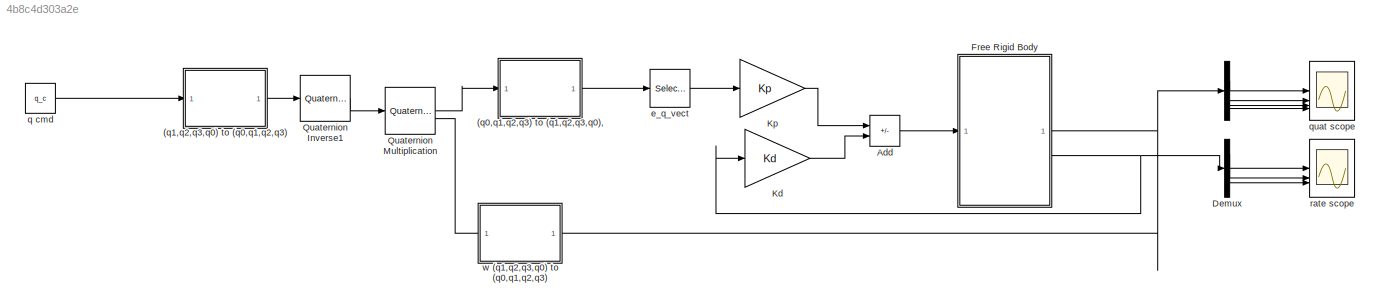
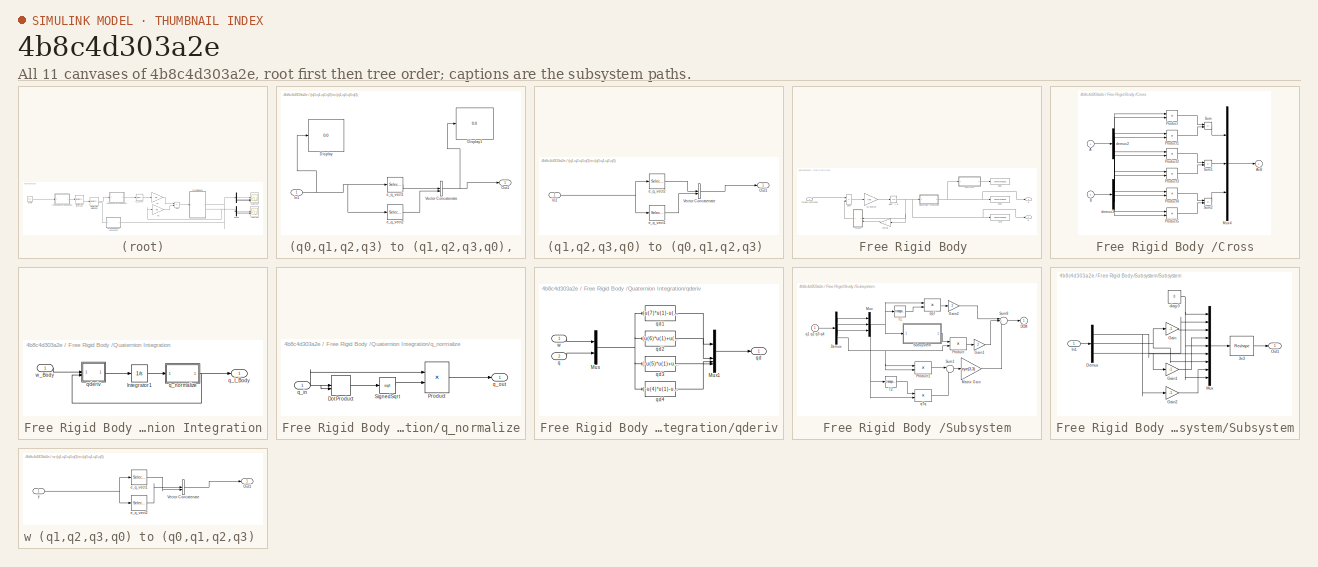
[diagram: thumbnail index - all 11 canvases of the model, root first then tree order]
MODEL slx_4b8c4d303a2e
KIND model
CONFIG AbsTol = auto
CONFIG EnableMultiTasking = on
CONFIG FixedStep = auto
CONFIG MaxStep = 20
CONFIG MinStep = auto
CONFIG RelTol = 1e-6
CONFIG SampleTimeConstraint = Unconstrained
CONFIG SolverName = ode45
CONFIG StartTime = 0.0
CONFIG StopTime = 2000
BLOCK [Demux]  
  DisplayOption = none
BLOCK [SubSystem] (q0,q1,q2,q3) to (q1,q2,q3,q0),
BLOCK [Display] (q0,q1,q2,q3) to (q1,q2,q3,q0),/Display
  Decimation = 1
BLOCK [Display] (q0,q1,q2,q3) to (q1,q2,q3,q0),/Display1
  Decimation = 1
BLOCK [Inport] (q0,q1,q2,q3) to (q1,q2,q3,q0),/In1
BLOCK [Outport] (q0,q1,q2,q3) to (q1,q2,q3,q0),/Out1
BLOCK [Concatenate] (q0,q1,q2,q3) to (q1,q2,q3,q0),/Vector Concatenate
BLOCK [Selector] (q0,q1,q2,q3) to (q1,q2,q3,q0),/e_q_vect1
  IndexOptions = Index vector (dialog)
  Indices = [2 3 4]
  InputPortWidth = 4
  OutputSizes = 1
BLOCK [Selector] (q0,q1,q2,q3) to (q1,q2,q3,q0),/e_q_vect2
  IndexOptions = Index vector (dialog)
  Indices = [1]
  InputPortWidth = 4
  OutputSizes = 1
BLOCK [SubSystem] (q1,q2,q3,q0) to (q0,q1,q2,q3) 
BLOCK [Inport] (q1,q2,q3,q0) to (q0,q1,q2,q3) /In1
BLOCK [Outport] (q1,q2,q3,q0) to (q0,q1,q2,q3) /Out1
BLOCK [Concatenate] (q1,q2,q3,q0) to (q0,q1,q2,q3) /Vector Concatenate
BLOCK [Selector] (q1,q2,q3,q0) to (q0,q1,q2,q3) /e_q_vect1
  IndexOptions = Index vector (dialog)
  Indices = [1 2 3]
  InputPortWidth = 4
  OutputSizes = 1
BLOCK [Selector] (q1,q2,q3,q0) to (q0,q1,q2,q3) /e_q_vect2
  IndexOptions = Index vector (dialog)
  Indices = [4]
  InputPortWidth = 4
  OutputSizes = 1
BLOCK [Sum] Add
  IconShape = rectangular
  Inputs = --
BLOCK [Demux] Demux
  DisplayOption = none
  Outputs = 3
BLOCK [SubSystem] Free Rigid Body 
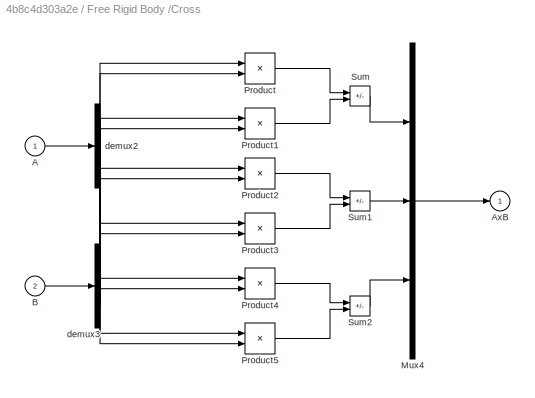
BLOCK [SubSystem] Free Rigid Body /Cross
BLOCK [Inport] Free Rigid Body /Cross/A
BLOCK [Outport] Free Rigid Body /Cross/AxB
  InitialOutput = 0
BLOCK [Inport] Free Rigid Body /Cross/B
  Port = 2
BLOCK [Mux] Free Rigid Body /Cross/Mux4
  Inputs = 3
BLOCK [Product] Free Rigid Body /Cross/Product
  InputSameDT = on
  OutDataTypeStr = Inherit: Same as first input
  SaturateOnIntegerOverflow = on
BLOCK [Product] Free Rigid Body /Cross/Product1
  InputSameDT = on
  OutDataTypeStr = Inherit: Same as first input
  SaturateOnIntegerOverflow = on
BLOCK [Product] Free Rigid Body /Cross/Product2
  InputSameDT = on
  OutDataTypeStr = Inherit: Same as first input
  SaturateOnIntegerOverflow = on
BLOCK [Product] Free Rigid Body /Cross/Product3
  InputSameDT = on
  OutDataTypeStr = Inherit: Same as first input
  SaturateOnIntegerOverflow = on
BLOCK [Product] Free Rigid Body /Cross/Product4
  InputSameDT = on
  OutDataTypeStr = Inherit: Same as first input
  SaturateOnIntegerOverflow = on
BLOCK [Product] Free Rigid Body /Cross/Product5
  InputSameDT = on
  OutDataTypeStr = Inherit: Same as first input
  SaturateOnIntegerOverflow = on
BLOCK [Sum] Free Rigid Body /Cross/Sum
  IconShape = rectangular
  InputSameDT = on
  Inputs = +-
  OutDataTypeStr = Inherit: Same as first input
  SaturateOnIntegerOverflow = on
BLOCK [Sum] Free Rigid Body /Cross/Sum1
  IconShape = rectangular
  InputSameDT = on
  Inputs = +-
  OutDataTypeStr = Inherit: Same as first input
  SaturateOnIntegerOverflow = on
BLOCK [Sum] Free Rigid Body /Cross/Sum2
  IconShape = rectangular
  InputSameDT = on
  Inputs = +-
  OutDataTypeStr = Inherit: Same as first input
  SaturateOnIntegerOverflow = on
BLOCK [Demux] Free Rigid Body /Cross/demux2
  DisplayOption = none
  Outputs = 3
BLOCK [Demux] Free Rigid Body /Cross/demux3
  DisplayOption = none
  Outputs = 3
BLOCK [ToWorkspace] Free Rigid Body /DCM
  FixptAsFi = on
  MaxDataPoints = inf
  SampleTime = -1
  SaveFormat = Structure With Time
  VariableName = DCM
BLOCK [Gain] Free Rigid Body /Inertia
  Gain = I
  Multiplication = Matrix(K*u)
  OutDataTypeStr = Inherit: Same as input
  ParamDataTypeStr = Inherit: Same as input
  SaturateOnIntegerOverflow = on
BLOCK [Gain] Free Rigid Body /Isc inverse
  Gain = invI
  Multiplication = Matrix(K*u)
  OutDataTypeStr = Inherit: Same as input
  ParamDataTypeStr = Inherit: Same as input
  SaturateOnIntegerOverflow = on
BLOCK [SubSystem] Free Rigid Body /Quaternion Integration
BLOCK [Integrator] Free Rigid Body /Quaternion Integration/Integrator1
  InitialCondition = q_init
BLOCK [Outport] Free Rigid Body /Quaternion Integration/q_I_Body
BLOCK [SubSystem] Free Rigid Body /Quaternion Integration/q_normalize
BLOCK [DotProduct] Free Rigid Body /Quaternion Integration/q_normalize/Dot Product
  OutDataTypeStr = Inherit: Inherit via internal rule
BLOCK [Product] Free Rigid Body /Quaternion Integration/q_normalize/Product
  InputSameDT = on
  Inputs = */
  OutDataTypeStr = Inherit: Same as first input
  SaturateOnIntegerOverflow = on
BLOCK [Sqrt] Free Rigid Body /Quaternion Integration/q_normalize/SignedSqrt
  IntermediateResultsDataTypeStr = double
BLOCK [Inport] Free Rigid Body /Quaternion Integration/q_normalize/q_in
  PortDimensions = 4
BLOCK [Outport] Free Rigid Body /Quaternion Integration/q_normalize/q_out
BLOCK [SubSystem] Free Rigid Body /Quaternion Integration/qderiv
BLOCK [Mux] Free Rigid Body /Quaternion Integration/qderiv/Mux
  DisplayOption = bar
  Inputs = 2
BLOCK [Mux] Free Rigid Body /Quaternion Integration/qderiv/Mux1
  DisplayOption = bar
BLOCK [Inport] Free Rigid Body /Quaternion Integration/qderiv/q
  Port = 2
BLOCK [Outport] Free Rigid Body /Quaternion Integration/qderiv/qd
BLOCK [Fcn] Free Rigid Body /Quaternion Integration/qderiv/qd1
  Expr = (u(7)*u(1)-u(6)*u(2)+u(5)*u(3))/2
BLOCK [Fcn] Free Rigid Body /Quaternion Integration/qderiv/qd2
  Expr = (u(6)*u(1)+u(7)*u(2)-u(4)*u(3))/2
BLOCK [Fcn] Free Rigid Body /Quaternion Integration/qderiv/qd3
  Expr = (-u(5)*u(1)+u(4)*u(2)+u(7)*u(3))/2
BLOCK [Fcn] Free Rigid Body /Quaternion Integration/qderiv/qd4
  Expr = (-u(4)*u(1)-u(5)*u(2)-u(6)*u(3))/2
BLOCK [Inport] Free Rigid Body /Quaternion Integration/qderiv/w
BLOCK [Inport] Free Rigid Body /Quaternion Integration/w_Body
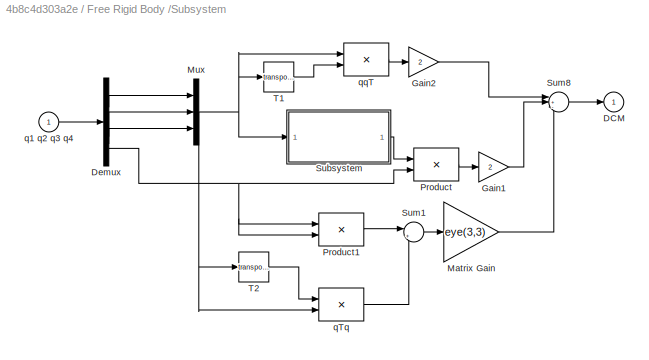
BLOCK [SubSystem] Free Rigid Body /Subsystem
BLOCK [Outport] Free Rigid Body /Subsystem/DCM
  InitialOutput = 0
BLOCK [Demux] Free Rigid Body /Subsystem/Demux
  DisplayOption = none
BLOCK [Gain] Free Rigid Body /Subsystem/Gain1
  Gain = 2
  OutDataTypeStr = Inherit: Same as input
  ParamDataTypeStr = Inherit: Same as input
  SaturateOnIntegerOverflow = on
BLOCK [Gain] Free Rigid Body /Subsystem/Gain2
  Gain = 2
  OutDataTypeStr = Inherit: Same as input
  ParamDataTypeStr = Inherit: Same as input
  SaturateOnIntegerOverflow = on
BLOCK [Gain] Free Rigid Body /Subsystem/Matrix Gain
  Gain = eye(3,3)
  OutDataTypeStr = Inherit: Same as input
  ParamDataTypeStr = Inherit: Same as input
  SaturateOnIntegerOverflow = on
BLOCK [Mux] Free Rigid Body /Subsystem/Mux
  DisplayOption = bar
  Inputs = 3
BLOCK [Product] Free Rigid Body /Subsystem/Product
  InputSameDT = on
  OutDataTypeStr = Inherit: Same as first input
  SaturateOnIntegerOverflow = on
BLOCK [Product] Free Rigid Body /Subsystem/Product1
  InputSameDT = on
  OutDataTypeStr = Inherit: Same as first input
  SaturateOnIntegerOverflow = on
BLOCK [SubSystem] Free Rigid Body /Subsystem/Subsystem
BLOCK [Reshape] Free Rigid Body /Subsystem/Subsystem/3x3
  OutputDimensionality = Customize
  OutputDimensions = [3,3]
BLOCK [Demux] Free Rigid Body /Subsystem/Subsystem/Demux
  DisplayOption = none
  Outputs = 3
BLOCK [Gain] Free Rigid Body /Subsystem/Subsystem/Gain
  Gain = -1
  OutDataTypeStr = Inherit: Same as input
  ParamDataTypeStr = Inherit: Same as input
  SaturateOnIntegerOverflow = on
BLOCK [Gain] Free Rigid Body /Subsystem/Subsystem/Gain1
  Gain = -1
  OutDataTypeStr = Inherit: Same as input
  ParamDataTypeStr = Inherit: Same as input
  SaturateOnIntegerOverflow = on
BLOCK [Gain] Free Rigid Body /Subsystem/Subsystem/Gain2
  Gain = -1
  OutDataTypeStr = Inherit: Same as input
  ParamDataTypeStr = Inherit: Same as input
  SaturateOnIntegerOverflow = on
BLOCK [Inport] Free Rigid Body /Subsystem/Subsystem/In1
BLOCK [Mux] Free Rigid Body /Subsystem/Subsystem/Mux
  DisplayOption = bar
  Inputs = 9
BLOCK [Outport] Free Rigid Body /Subsystem/Subsystem/Out1
BLOCK [Constant] Free Rigid Body /Subsystem/Subsystem/diag 0 
  Value = 0
BLOCK [Sum] Free Rigid Body /Subsystem/Sum1
  InputSameDT = on
  Inputs = |+-
  OutDataTypeStr = Inherit: Same as first input
  SaturateOnIntegerOverflow = on
BLOCK [Sum] Free Rigid Body /Subsystem/Sum8
  InputSameDT = on
  Inputs = |+-+
  OutDataTypeStr = Inherit: Same as first input
  SaturateOnIntegerOverflow = on
BLOCK [Math] Free Rigid Body /Subsystem/T1
  Operator = transpose
  SignedPower = on
BLOCK [Math] Free Rigid Body /Subsystem/T2
  Operator = transpose
  SignedPower = on
BLOCK [Inport] Free Rigid Body /Subsystem/q1 q2 q3 q4
BLOCK [Product] Free Rigid Body /Subsystem/qTq
  InputSameDT = on
  Multiplication = Matrix(*)
  OutDataTypeStr = Inherit: Same as first input
  SaturateOnIntegerOverflow = on
BLOCK [Product] Free Rigid Body /Subsystem/qqT
  InputSameDT = on
  Multiplication = Matrix(*)
  OutDataTypeStr = Inherit: Same as first input
  SaturateOnIntegerOverflow = on
BLOCK [Sum] Free Rigid Body /Sum
  IconShape = rectangular
  InputSameDT = on
  Inputs = |+-
  OutDataTypeStr = Inherit: Same as first input
  SaturateOnIntegerOverflow = on
BLOCK [Outport] Free Rigid Body /q
BLOCK [ToWorkspace] Free Rigid Body /quat
  FixptAsFi = on
  MaxDataPoints = inf
  SampleTime = -1
  SaveFormat = Structure With Time
  VariableName = quat
BLOCK [ToWorkspace] Free Rigid Body /rate
  FixptAsFi = on
  MaxDataPoints = inf
  SampleTime = -1
  SaveFormat = Structure With Time
  VariableName = rate
BLOCK [Inport] Free Rigid Body /torque command
BLOCK [Outport] Free Rigid Body /w
  Port = 2
BLOCK [Integrator] Free Rigid Body /wdot -> w
  InitialCondition = wbn_init
BLOCK [Gain] Kd
  Gain = Kd
  Multiplication = Matrix(K*u)
  OutDataTypeStr = Inherit: Same as input
  ParamDataTypeStr = Inherit: Same as input
  SaturateOnIntegerOverflow = on
BLOCK [Gain] Kp
  Gain = Kp
  Multiplication = Matrix(K*u)
  OutDataTypeStr = Inherit: Same as input
  ParamDataTypeStr = Inherit: Same as input
  SaturateOnIntegerOverflow = on
BLOCK [Reference] Quaternion Inverse1  REF=aerolibutil/Quaternion
Inverse
  SourceBlock = aerolibutil/Quaternion\nInverse
  SourceType = Quaternion Inverse
BLOCK [Reference] Quaternion Multiplication  REF=aerolibutil/Quaternion
Multiplication
  SourceBlock = aerolibutil/Quaternion\nMultiplication
  SourceType = Quaternion Multiplication
BLOCK [Selector] e_q_vect
  IndexOptions = Index vector (dialog)
  Indices = [1 2 3]
  InputPortWidth = 4
  OutputSizes = 1
BLOCK [Constant] q cmd
  Value = q_c
  VectorParams1D = off
BLOCK [Scope] quat scope
  Floating = off
  NumInputPorts = 4
  ScopeSpecificationString = Simulink.scopes.TimeScopeBlockCfg('CurrentConfiguration', extmgr.ConfigurationSet(extmgr.Configuration('Core','General UI',true),extmgr.Configuration('Core','Source UI',true),extmgr.Configuration('Sources','WiredSimulink',true,'DataLoggingVariableName','ScopeData1'),extmgr.Configuration('Visuals','Time Domain',true,'SerializedDisplays',{struct('MinYLimReal','0.3756','MaxYLimReal','0.51615','YLabel...<+3738ch>
BLOCK [Scope] rate scope
  Floating = off
  NumInputPorts = 3
  ScopeSpecificationString = Simulink.scopes.TimeScopeBlockCfg('CurrentConfiguration', extmgr.ConfigurationSet(extmgr.Configuration('Core','General UI',true),extmgr.Configuration('Core','Source UI',true),extmgr.Configuration('Sources','WiredSimulink',true),extmgr.Configuration('Visuals','Time Domain',true,'SerializedDisplays',{struct('MinYLimReal','-0.00228','MaxYLimReal','0.00637','YLabelReal','','MinYLimMag','0.00000','MaxY...<+2906ch>
BLOCK [SubSystem] w (q1,q2,q3,q0) to (q0,q1,q2,q3) 
  PortSchema = {"entries":[{"content":{"sides":[{"content":{"connectorIds":["Out1"]},"type":"ConnectorPlacement.EquallySpacedRectSide","uuid":"97b477ad-5663-4010-b344-d27b8ec095be"},{"content":{"connectorIds":["In1"],"side":"RIGHT"},"type":"ConnectorPlacement.EquallySpacedRectSide","uuid":"41fe4029-0263-4427-bdfc-3c26258b8a65"},{"content":{"side":"TOP"},"type":"ConnectorPlacement.EquallySpacedRectSide","uuid":"9...<+222ch>
BLOCK [Outport] w (q1,q2,q3,q0) to (q0,q1,q2,q3) /Out1
BLOCK [Concatenate] w (q1,q2,q3,q0) to (q0,q1,q2,q3) /Vector Concatenate
BLOCK [Selector] w (q1,q2,q3,q0) to (q0,q1,q2,q3) /e_q_vect1
  IndexOptions = Index vector (dialog)
  Indices = [1 2 3]
  InputPortWidth = 4
  OutputSizes = 1
BLOCK [Selector] w (q1,q2,q3,q0) to (q0,q1,q2,q3) /e_q_vect2
  IndexOptions = Index vector (dialog)
  Indices = [4]
  InputPortWidth = 4
  OutputSizes = 1
BLOCK [Inport] w (q1,q2,q3,q0) to (q0,q1,q2,q3) /y
LINE  :1 -> quat scope:1
LINE  :2 -> quat scope:2
LINE  :3 -> quat scope:3
LINE  :4 -> quat scope:4
NET (q0,q1,q2,q3) to (q1,q2,q3,q0),/In1:1 -> (q0,q1,q2,q3) to (q1,q2,q3,q0),/Display:1, (q0,q1,q2,q3) to (q1,q2,q3,q0),/e_q_vect1:1, (q0,q1,q2,q3) to (q1,q2,q3,q0),/e_q_vect2:1
NET (q0,q1,q2,q3) to (q1,q2,q3,q0),/Vector Concatenate:1 -> (q0,q1,q2,q3) to (q1,q2,q3,q0),/Display1:1, (q0,q1,q2,q3) to (q1,q2,q3,q0),/Out1:1
LINE (q0,q1,q2,q3) to (q1,q2,q3,q0),/e_q_vect1:1 -> (q0,q1,q2,q3) to (q1,q2,q3,q0),/Vector Concatenate:1
LINE (q0,q1,q2,q3) to (q1,q2,q3,q0),/e_q_vect2:1 -> (q0,q1,q2,q3) to (q1,q2,q3,q0),/Vector Concatenate:2
LINE (q0,q1,q2,q3) to (q1,q2,q3,q0),:1 -> e_q_vect:1
NET (q1,q2,q3,q0) to (q0,q1,q2,q3) /In1:1 -> (q1,q2,q3,q0) to (q0,q1,q2,q3) /e_q_vect1:1, (q1,q2,q3,q0) to (q0,q1,q2,q3) /e_q_vect2:1
LINE (q1,q2,q3,q0) to (q0,q1,q2,q3) /Vector Concatenate:1 -> (q1,q2,q3,q0) to (q0,q1,q2,q3) /Out1:1
LINE (q1,q2,q3,q0) to (q0,q1,q2,q3) /e_q_vect1:1 -> (q1,q2,q3,q0) to (q0,q1,q2,q3) /Vector Concatenate:2
LINE (q1,q2,q3,q0) to (q0,q1,q2,q3) /e_q_vect2:1 -> (q1,q2,q3,q0) to (q0,q1,q2,q3) /Vector Concatenate:1
LINE (q1,q2,q3,q0) to (q0,q1,q2,q3) :1 -> Quaternion Inverse1:1
LINE Add:1 -> Free Rigid Body :1
LINE Demux:1 -> rate scope:1
LINE Demux:2 -> rate scope:2
LINE Demux:3 -> rate scope:3
LINE Free Rigid Body /Cross/A:1 -> Free Rigid Body /Cross/demux2:1
LINE Free Rigid Body /Cross/B:1 -> Free Rigid Body /Cross/demux3:1
LINE Free Rigid Body /Cross/Mux4:1 -> Free Rigid Body /Cross/AxB:1
LINE Free Rigid Body /Cross/Product1:1 -> Free Rigid Body /Cross/Sum:2
LINE Free Rigid Body /Cross/Product2:1 -> Free Rigid Body /Cross/Sum1:1
LINE Free Rigid Body /Cross/Product3:1 -> Free Rigid Body /Cross/Sum1:2
LINE Free Rigid Body /Cross/Product4:1 -> Free Rigid Body /Cross/Sum2:1
LINE Free Rigid Body /Cross/Product5:1 -> Free Rigid Body /Cross/Sum2:2
LINE Free Rigid Body /Cross/Product:1 -> Free Rigid Body /Cross/Sum:1
LINE Free Rigid Body /Cross/Sum1:1 -> Free Rigid Body /Cross/Mux4:2
LINE Free Rigid Body /Cross/Sum2:1 -> Free Rigid Body /Cross/Mux4:3
LINE Free Rigid Body /Cross/Sum:1 -> Free Rigid Body /Cross/Mux4:1
NET Free Rigid Body /Cross/demux2:1 -> Free Rigid Body /Cross/Product3:1, Free Rigid Body /Cross/Product4:1
NET Free Rigid Body /Cross/demux2:2 -> Free Rigid Body /Cross/Product5:1, Free Rigid Body /Cross/Product:1
NET Free Rigid Body /Cross/demux2:3 -> Free Rigid Body /Cross/Product1:1, Free Rigid Body /Cross/Product2:1
NET Free Rigid Body /Cross/demux3:1 -> Free Rigid Body /Cross/Product2:2, Free Rigid Body /Cross/Product5:2
NET Free Rigid Body /Cross/demux3:2 -> Free Rigid Body /Cross/Product1:2, Free Rigid Body /Cross/Product4:2
NET Free Rigid Body /Cross/demux3:3 -> Free Rigid Body /Cross/Product3:2, Free Rigid Body /Cross/Product:2
LINE Free Rigid Body /Cross:1 -> Free Rigid Body /Sum:2
LINE Free Rigid Body /Inertia:1 -> Free Rigid Body /Cross:2
LINE Free Rigid Body /Isc inverse:1 -> Free Rigid Body /wdot -> w:1
LINE Free Rigid Body /Quaternion Integration/Integrator1:1 -> Free Rigid Body /Quaternion Integration/q_normalize:1
LINE Free Rigid Body /Quaternion Integration/q_normalize/Dot Product:1 -> Free Rigid Body /Quaternion Integration/q_normalize/SignedSqrt:1
LINE Free Rigid Body /Quaternion Integration/q_normalize/Product:1 -> Free Rigid Body /Quaternion Integration/q_normalize/q_out:1
LINE Free Rigid Body /Quaternion Integration/q_normalize/SignedSqrt:1 -> Free Rigid Body /Quaternion Integration/q_normalize/Product:2
NET Free Rigid Body /Quaternion Integration/q_normalize/q_in:1 -> Free Rigid Body /Quaternion Integration/q_normalize/Dot Product:1, Free Rigid Body /Quaternion Integration/q_normalize/Dot Product:2, Free Rigid Body /Quaternion Integration/q_normalize/Product:1
NET Free Rigid Body /Quaternion Integration/q_normalize:1 -> Free Rigid Body /Quaternion Integration/q_I_Body:1, Free Rigid Body /Quaternion Integration/qderiv:2
LINE Free Rigid Body /Quaternion Integration/qderiv/Mux1:1 -> Free Rigid Body /Quaternion Integration/qderiv/qd:1
NET Free Rigid Body /Quaternion Integration/qderiv/Mux:1 -> Free Rigid Body /Quaternion Integration/qderiv/qd1:1, Free Rigid Body /Quaternion Integration/qderiv/qd2:1, Free Rigid Body /Quaternion Integration/qderiv/qd3:1, Free Rigid Body /Quaternion Integration/qderiv/qd4:1
LINE Free Rigid Body /Quaternion Integration/qderiv/q:1 -> Free Rigid Body /Quaternion Integration/qderiv/Mux:2
LINE Free Rigid Body /Quaternion Integration/qderiv/qd1:1 -> Free Rigid Body /Quaternion Integration/qderiv/Mux1:1
LINE Free Rigid Body /Quaternion Integration/qderiv/qd2:1 -> Free Rigid Body /Quaternion Integration/qderiv/Mux1:2
LINE Free Rigid Body /Quaternion Integration/qderiv/qd3:1 -> Free Rigid Body /Quaternion Integration/qderiv/Mux1:3
LINE Free Rigid Body /Quaternion Integration/qderiv/qd4:1 -> Free Rigid Body /Quaternion Integration/qderiv/Mux1:4
LINE Free Rigid Body /Quaternion Integration/qderiv/w:1 -> Free Rigid Body /Quaternion Integration/qderiv/Mux:1
LINE Free Rigid Body /Quaternion Integration/qderiv:1 -> Free Rigid Body /Quaternion Integration/Integrator1:1
LINE Free Rigid Body /Quaternion Integration/w_Body:1 -> Free Rigid Body /Quaternion Integration/qderiv:1
NET Free Rigid Body /Quaternion Integration:1 -> Free Rigid Body /Subsystem:1, Free Rigid Body /q:1, Free Rigid Body /quat:1
LINE Free Rigid Body /Subsystem/Demux:1 -> Free Rigid Body /Subsystem/Mux:1
LINE Free Rigid Body /Subsystem/Demux:2 -> Free Rigid Body /Subsystem/Mux:2
LINE Free Rigid Body /Subsystem/Demux:3 -> Free Rigid Body /Subsystem/Mux:3
NET Free Rigid Body /Subsystem/Demux:4 -> Free Rigid Body /Subsystem/Product1:1, Free Rigid Body /Subsystem/Product1:2, Free Rigid Body /Subsystem/Product:2
LINE Free Rigid Body /Subsystem/Gain1:1 -> Free Rigid Body /Subsystem/Sum8:2
LINE Free Rigid Body /Subsystem/Gain2:1 -> Free Rigid Body /Subsystem/Sum8:1
LINE Free Rigid Body /Subsystem/Matrix Gain:1 -> Free Rigid Body /Subsystem/Sum8:3
NET Free Rigid Body /Subsystem/Mux:1 -> Free Rigid Body /Subsystem/Subsystem:1, Free Rigid Body /Subsystem/T1:1, Free Rigid Body /Subsystem/T2:1, Free Rigid Body /Subsystem/qTq:2, Free Rigid Body /Subsystem/qqT:1
LINE Free Rigid Body /Subsystem/Product1:1 -> Free Rigid Body /Subsystem/Sum1:1
LINE Free Rigid Body /Subsystem/Product:1 -> Free Rigid Body /Subsystem/Gain1:1
LINE Free Rigid Body /Subsystem/Subsystem/3x3:1 -> Free Rigid Body /Subsystem/Subsystem/Out1:1
NET Free Rigid Body /Subsystem/Subsystem/Demux:1 -> Free Rigid Body /Subsystem/Subsystem/Gain2:1, Free Rigid Body /Subsystem/Subsystem/Mux:6
NET Free Rigid Body /Subsystem/Subsystem/Demux:2 -> Free Rigid Body /Subsystem/Subsystem/Gain:1, Free Rigid Body /Subsystem/Subsystem/Mux:7
NET Free Rigid Body /Subsystem/Subsystem/Demux:3 -> Free Rigid Body /Subsystem/Subsystem/Gain1:1, Free Rigid Body /Subsystem/Subsystem/Mux:2
LINE Free Rigid Body /Subsystem/Subsystem/Gain1:1 -> Free Rigid Body /Subsystem/Subsystem/Mux:4
LINE Free Rigid Body /Subsystem/Subsystem/Gain2:1 -> Free Rigid Body /Subsystem/Subsystem/Mux:8
LINE Free Rigid Body /Subsystem/Subsystem/Gain:1 -> Free Rigid Body /Subsystem/Subsystem/Mux:3
LINE Free Rigid Body /Subsystem/Subsystem/In1:1 -> Free Rigid Body /Subsystem/Subsystem/Demux:1
LINE Free Rigid Body /Subsystem/Subsystem/Mux:1 -> Free Rigid Body /Subsystem/Subsystem/3x3:1
NET Free Rigid Body /Subsystem/Subsystem/diag 0 :1 -> Free Rigid Body /Subsystem/Subsystem/Mux:1, Free Rigid Body /Subsystem/Subsystem/Mux:5, Free Rigid Body /Subsystem/Subsystem/Mux:9
LINE Free Rigid Body /Subsystem/Subsystem:1 -> Free Rigid Body /Subsystem/Product:1
LINE Free Rigid Body /Subsystem/Sum1:1 -> Free Rigid Body /Subsystem/Matrix Gain:1
LINE Free Rigid Body /Subsystem/Sum8:1 -> Free Rigid Body /Subsystem/DCM:1
LINE Free Rigid Body /Subsystem/T1:1 -> Free Rigid Body /Subsystem/qqT:2
LINE Free Rigid Body /Subsystem/T2:1 -> Free Rigid Body /Subsystem/qTq:1
LINE Free Rigid Body /Subsystem/q1 q2 q3 q4:1 -> Free Rigid Body /Subsystem/Demux:1
LINE Free Rigid Body /Subsystem/qTq:1 -> Free Rigid Body /Subsystem/Sum1:2
LINE Free Rigid Body /Subsystem/qqT:1 -> Free Rigid Body /Subsystem/Gain2:1
LINE Free Rigid Body /Subsystem:1 -> Free Rigid Body /DCM:1
LINE Free Rigid Body /Sum:1 -> Free Rigid Body /Isc inverse:1
LINE Free Rigid Body /torque command:1 -> Free Rigid Body /Sum:1
NET Free Rigid Body /wdot -> w:1 -> Free Rigid Body /Cross:1, Free Rigid Body /Inertia:1, Free Rigid Body /Quaternion Integration:1, Free Rigid Body /rate:1, Free Rigid Body /w:1
NET Free Rigid Body :1 ->  :1, w (q1,q2,q3,q0) to (q0,q1,q2,q3) :1
NET Free Rigid Body :2 -> Demux:1, Kd:1
LINE Kd:1 -> Add:2
LINE Kp:1 -> Add:1
LINE Quaternion Inverse1:1 -> Quaternion Multiplication:1
LINE Quaternion Multiplication:1 -> (q0,q1,q2,q3) to (q1,q2,q3,q0),:1
LINE e_q_vect:1 -> Kp:1
LINE q cmd:1 -> (q1,q2,q3,q0) to (q0,q1,q2,q3) :1
LINE w (q1,q2,q3,q0) to (q0,q1,q2,q3) /Vector Concatenate:1 -> w (q1,q2,q3,q0) to (q0,q1,q2,q3) /Out1:1
LINE w (q1,q2,q3,q0) to (q0,q1,q2,q3) /e_q_vect1:1 -> w (q1,q2,q3,q0) to (q0,q1,q2,q3) /Vector Concatenate:2
LINE w (q1,q2,q3,q0) to (q0,q1,q2,q3) /e_q_vect2:1 -> w (q1,q2,q3,q0) to (q0,q1,q2,q3) /Vector Concatenate:1
NET w (q1,q2,q3,q0) to (q0,q1,q2,q3) /y:1 -> w (q1,q2,q3,q0) to (q0,q1,q2,q3) /e_q_vect1:1, w (q1,q2,q3,q0) to (q0,q1,q2,q3) /e_q_vect2:1
LINE w (q1,q2,q3,q0) to (q0,q1,q2,q3) :1 -> Quaternion Multiplication:2
note: NET lines group one-source signal fan-out (src -> all destinations, sorted); 1:1 wires keep LINE
